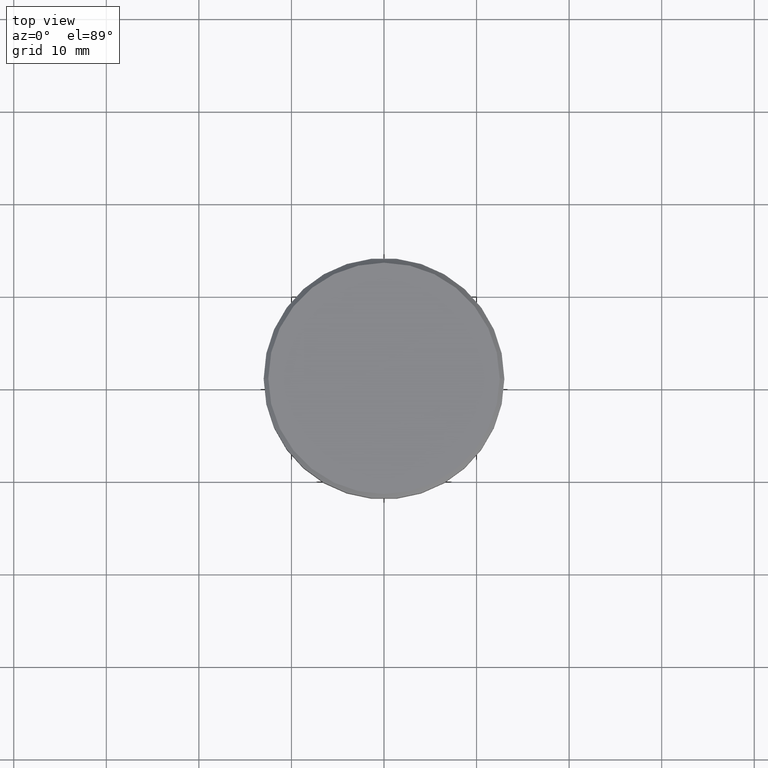
[diagram: clean part render]
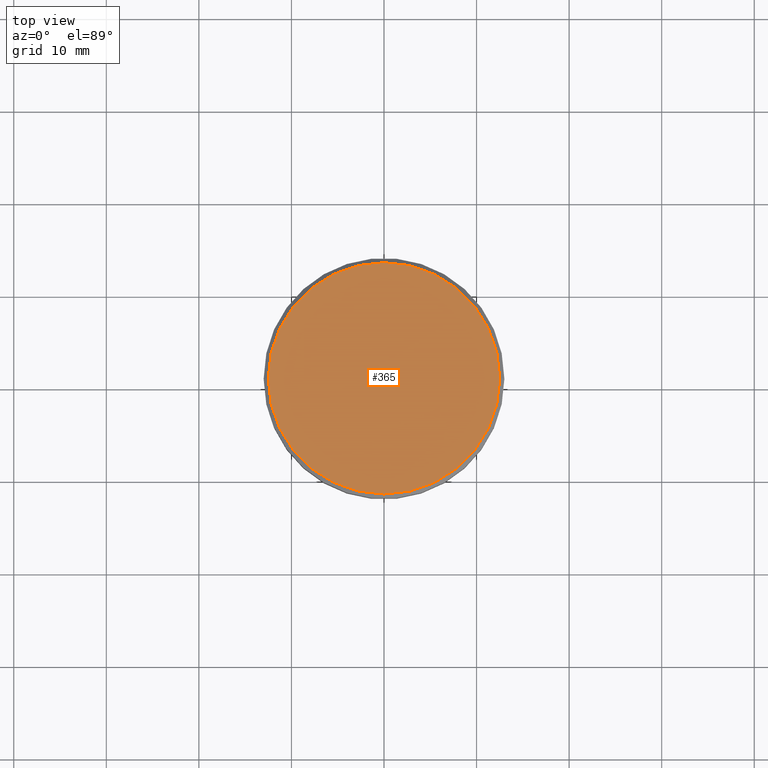
[diagram: same view with one face highlighted and labeled with its STEP entity id]
A machine part, top view. The second image highlights one B-rep face of the part: STEP entity #365.
In plain terms, the highlighted planar face has unit normal (0, -0, 1).
Its self-contained STEP definition (entity closure, byte-faithful):
#7 = DIRECTION ( 'NONE',  ( 1.000000000000000000, 0.000000000000000000, 0.000000000000000000 ) ) ;
#98 = CARTESIAN_POINT ( 'NONE',  ( 0.000000000000000000, 0.000000000000000000, 0.000000000000000000 ) ) ;
#170 = VERTEX_POINT ( 'NONE', #226 ) ;
#226 = CARTESIAN_POINT ( 'NONE',  ( -12.49999999999999645, 0.000000000000000000, 0.000000000000000000 ) ) ;
#279 = EDGE_CURVE ( 'NONE', #724, #170, #1016, .T. ) ;
#288 = ORIENTED_EDGE ( 'NONE', *, *, #279, .T. ) ;
#365 = ADVANCED_FACE ( 'NONE', ( #856 ), #1059, .T. ) ;
#422 = AXIS2_PLACEMENT_3D ( 'NONE', #1160, #526, #533 ) ;
#498 = CIRCLE ( 'NONE', #604, 12.49999999999999645 ) ;
#526 = DIRECTION ( 'NONE',  ( -0.000000000000000000, -0.000000000000000000, 1.000000000000000000 ) ) ;
#533 = DIRECTION ( 'NONE',  ( 1.000000000000000000, 0.000000000000000000, 0.000000000000000000 ) ) ;
#584 = CARTESIAN_POINT ( 'NONE',  ( 0.000000000000000000, 0.000000000000000000, 0.000000000000000000 ) ) ;
#592 = DIRECTION ( 'NONE',  ( 1.000000000000000000, 0.000000000000000000, 0.000000000000000000 ) ) ;
#604 = AXIS2_PLACEMENT_3D ( 'NONE', #98, #831, #7 ) ;
#657 = EDGE_CURVE ( 'NONE', #170, #724, #498, .T. ) ;
#685 = DIRECTION ( 'NONE',  ( 0.000000000000000000, -0.000000000000000000, 1.000000000000000000 ) ) ;
#724 = VERTEX_POINT ( 'NONE', #1072 ) ;
#831 = DIRECTION ( 'NONE',  ( -0.000000000000000000, -0.000000000000000000, 1.000000000000000000 ) ) ;
#856 = FACE_OUTER_BOUND ( 'NONE', #945, .T. ) ;
#945 = EDGE_LOOP ( 'NONE', ( #1009, #288 ) ) ;
#995 = AXIS2_PLACEMENT_3D ( 'NONE', #584, #685, #592 ) ;
#1009 = ORIENTED_EDGE ( 'NONE', *, *, #657, .T. ) ;
#1016 = CIRCLE ( 'NONE', #422, 12.49999999999999645 ) ;
#1059 = PLANE ( 'NONE',  #995 ) ;
#1072 = CARTESIAN_POINT ( 'NONE',  ( 12.49999999999999645, 1.561424668912875111E-15, 0.000000000000000000 ) ) ;
#1160 = CARTESIAN_POINT ( 'NONE',  ( 0.000000000000000000, 0.000000000000000000, 0.000000000000000000 ) ) ;